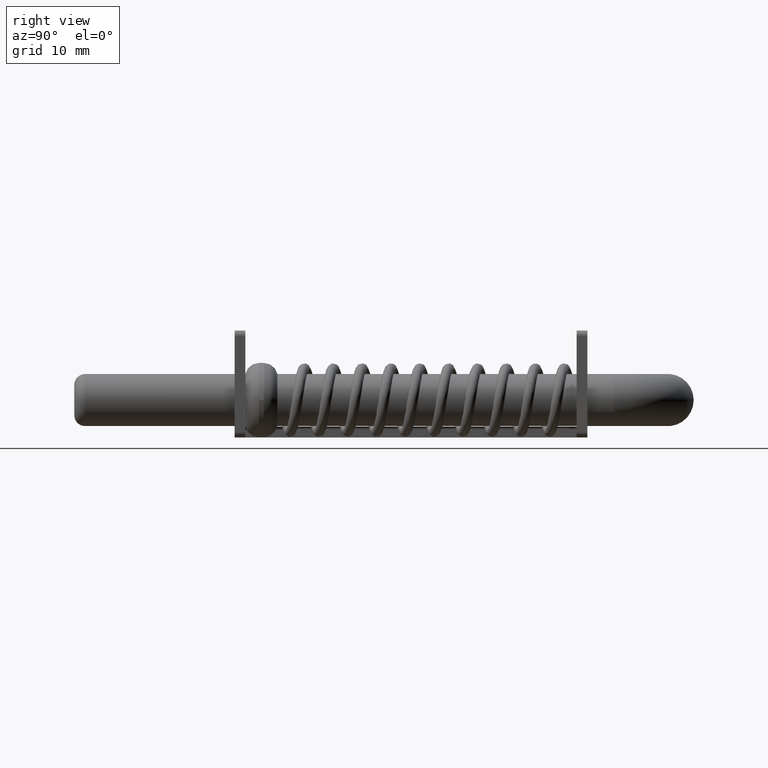
[diagram: clean part render]
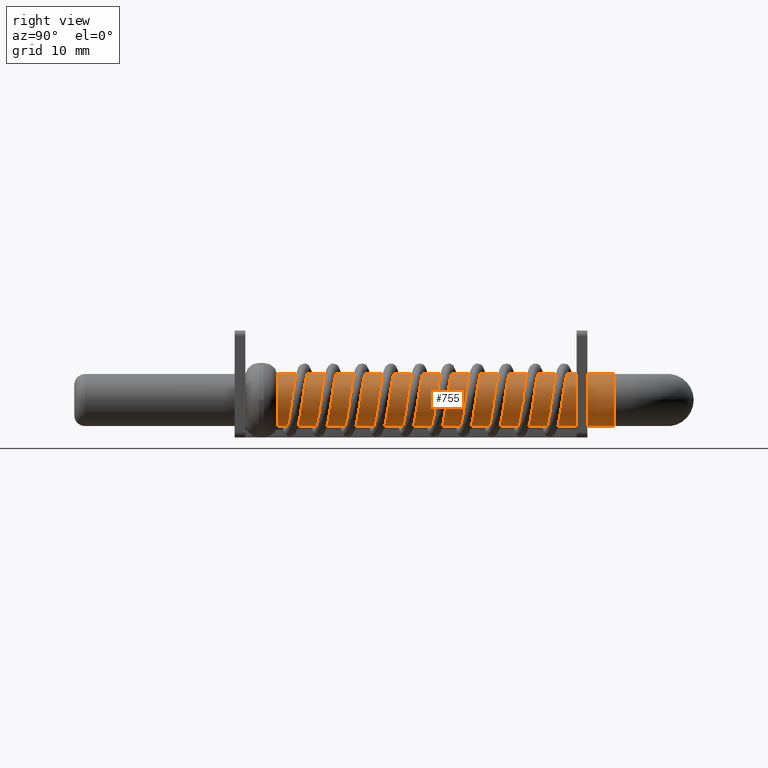
[diagram: same view with one face highlighted and labeled with its STEP entity id]
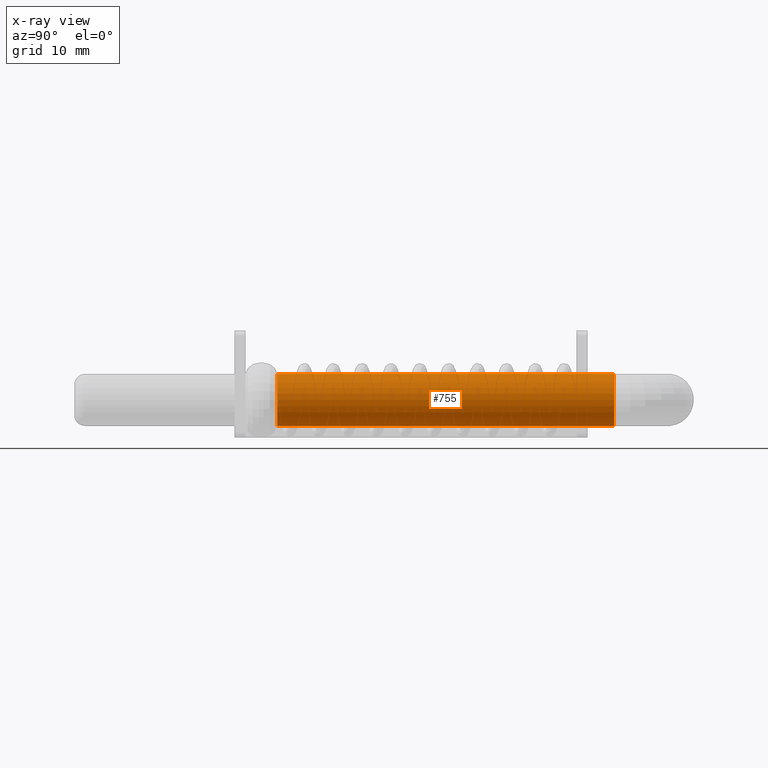
[diagram: x-ray of the same camera — body ghosted, the highlighted face saturated]
A machine part, right view. The second image highlights one B-rep face of the part: STEP entity #755.
The next image is the same camera in x-ray: the body ghosted, the highlighted face saturated — about 0% of this face is hidden behind the body in this view.
In plain terms, the highlighted cylindrical surface (bore or boss wall) has radius 2.45 mm, axis along (0, -1, 0).
Its self-contained STEP definition (entity closure, byte-faithful):
#169=FACE_BOUND('',#272,.T.);
#211=FACE_OUTER_BOUND('',#271,.T.);
#271=EDGE_LOOP('',(#682));
#272=EDGE_LOOP('',(#683));
#318=CIRCLE('',#842,2.45);
#319=CIRCLE('',#844,2.45);
#389=VERTEX_POINT('',#1302);
#390=VERTEX_POINT('',#1305);
#488=EDGE_CURVE('',#389,#389,#318,.T.);
#489=EDGE_CURVE('',#390,#390,#319,.T.);
#682=ORIENTED_EDGE('',*,*,#489,.T.);
#683=ORIENTED_EDGE('',*,*,#488,.T.);
#714=CYLINDRICAL_SURFACE('',#843,2.45);
#755=ADVANCED_FACE('',(#211,#169),#714,.T.);
#842=AXIS2_PLACEMENT_3D('',#1303,#1062,#1063);
#843=AXIS2_PLACEMENT_3D('',#1304,#1064,#1065);
#844=AXIS2_PLACEMENT_3D('',#1306,#1066,#1067);
#1062=DIRECTION('center_axis',(-1.85037170770859E-16,1.,0.));
#1063=DIRECTION('ref_axis',(1.,0.,0.));
#1064=DIRECTION('center_axis',(0.,-1.,0.));
#1065=DIRECTION('ref_axis',(1.,0.,0.));
#1066=DIRECTION('center_axis',(0.,-1.,0.));
#1067=DIRECTION('ref_axis',(1.,0.,0.));
#1302=CARTESIAN_POINT('',(11.55,-12.5,3.5));
#1303=CARTESIAN_POINT('Origin',(14.,-12.5,3.5));
#1304=CARTESIAN_POINT('Origin',(14.,19.,3.5));
#1305=CARTESIAN_POINT('',(11.55,19.,3.5));
#1306=CARTESIAN_POINT('Origin',(14.,19.,3.5));